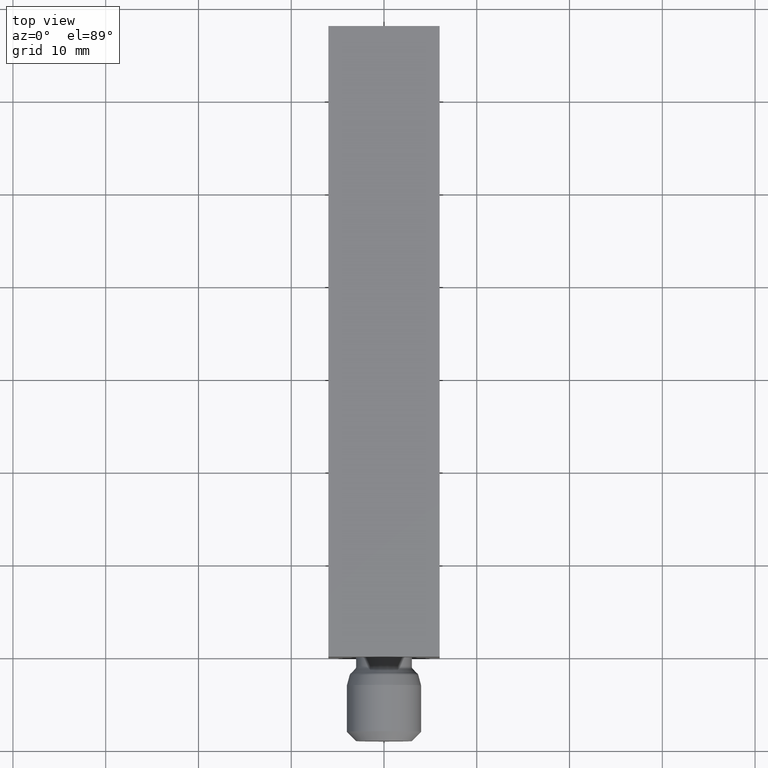
[diagram: clean part render]
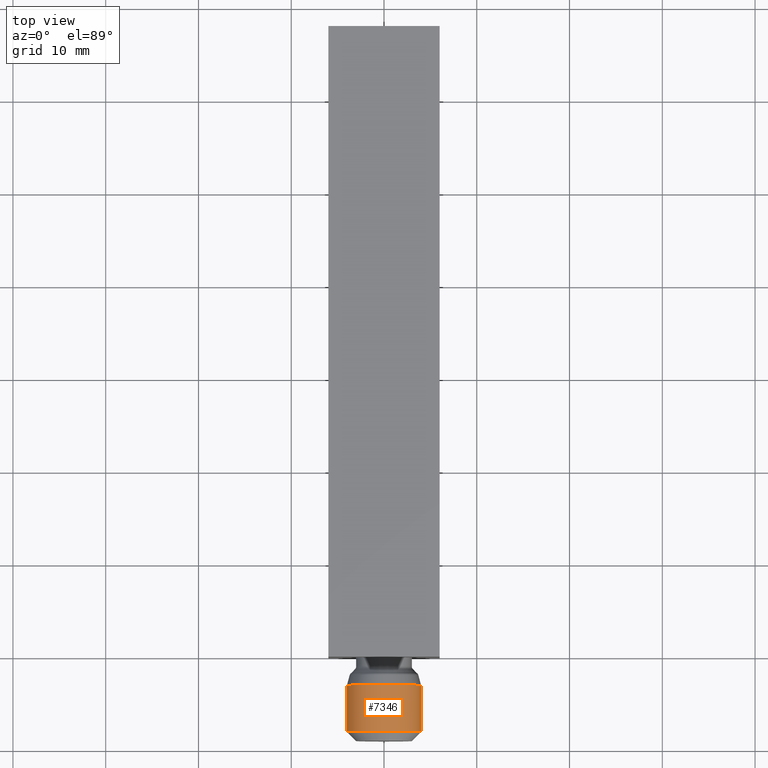
[diagram: same view with one face highlighted and labeled with its STEP entity id]
A machine part, top view. The second image highlights one B-rep face of the part: STEP entity #7346.
In plain terms, the highlighted cylindrical surface (partial cylindrical patch) has radius 4 mm, axis along (-0, 1, -0).
Its self-contained STEP definition (entity closure, byte-faithful):
#108 = VECTOR ( 'NONE', #7519, 1000.000000000000000 ) ;
#516 = DIRECTION ( 'NONE',  ( -1.000000000000000000, 0.0000000000000000000, 0.0000000000000000000 ) ) ;
#569 = CARTESIAN_POINT ( 'NONE',  ( -4.000000000000005300, -4.898587196589418700E-016, 0.0000000000000000000 ) ) ;
#667 = CARTESIAN_POINT ( 'NONE',  ( -4.000000000000000000, -3.000000000000000900, 0.0000000000000000000 ) ) ;
#1411 = EDGE_LOOP ( 'NONE', ( #3878, #3458, #2516, #7060 ) ) ;
#1893 = CARTESIAN_POINT ( 'NONE',  ( 0.0000000000000000000, 0.0000000000000000000, 0.0000000000000000000 ) ) ;
#2059 = AXIS2_PLACEMENT_3D ( 'NONE', #7641, #10630, #516 ) ;
#2201 = VECTOR ( 'NONE', #7592, 1000.000000000000000 ) ;
#2300 = CARTESIAN_POINT ( 'NONE',  ( 3.673940397442059900E-016, -3.000000000000000400, 0.0000000000000000000 ) ) ;
#2497 = CIRCLE ( 'NONE', #2059, 4.000000000000009800 ) ;
#2516 = ORIENTED_EDGE ( 'NONE', *, *, #8921, .F. ) ;
#2639 = AXIS2_PLACEMENT_3D ( 'NONE', #1893, #11014, #2875 ) ;
#2642 = CARTESIAN_POINT ( 'NONE',  ( 4.000000000000005300, 4.898587196589418700E-016, 4.898587196589419700E-016 ) ) ;
#2875 = DIRECTION ( 'NONE',  ( -1.000000000000000000, -1.224646799147353000E-016, 0.0000000000000000000 ) ) ;
#3297 = CARTESIAN_POINT ( 'NONE',  ( 4.000000000000011500, -7.999999999999992900, 4.898587196589424700E-016 ) ) ;
#3373 = DIRECTION ( 'NONE',  ( -1.224646799147353000E-016, 1.000000000000000000, -0.0000000000000000000 ) ) ;
#3458 = ORIENTED_EDGE ( 'NONE', *, *, #11010, .T. ) ;
#3821 = CYLINDRICAL_SURFACE ( 'NONE', #2639, 4.000000000000005300 ) ;
#3878 = ORIENTED_EDGE ( 'NONE', *, *, #11274, .T. ) ;
#4756 = LINE ( 'NONE', #2642, #2201 ) ;
#5756 = AXIS2_PLACEMENT_3D ( 'NONE', #2300, #3373, #10427 ) ;
#6680 = VERTEX_POINT ( 'NONE', #11338 ) ;
#7060 = ORIENTED_EDGE ( 'NONE', *, *, #12799, .F. ) ;
#7346 = ADVANCED_FACE ( 'NONE', ( #9182 ), #3821, .T. ) ;
#7519 = DIRECTION ( 'NONE',  ( -1.224646799147353000E-016, 1.000000000000000000, -0.0000000000000000000 ) ) ;
#7592 = DIRECTION ( 'NONE',  ( -1.224646799147353000E-016, 1.000000000000000000, -0.0000000000000000000 ) ) ;
#7595 = CARTESIAN_POINT ( 'NONE',  ( 4.000000000000000000, -3.000000000000000000, 4.898587196589416800E-016 ) ) ;
#7641 = CARTESIAN_POINT ( 'NONE',  ( 9.797174393178815800E-016, -7.999999999999992900, 0.0000000000000000000 ) ) ;
#8921 = EDGE_CURVE ( 'NONE', #12009, #11319, #8998, .T. ) ;
#8998 = CIRCLE ( 'NONE', #5756, 4.000000000000000000 ) ;
#9182 = FACE_OUTER_BOUND ( 'NONE', #1411, .T. ) ;
#9671 = VERTEX_POINT ( 'NONE', #3297 ) ;
#10427 = DIRECTION ( 'NONE',  ( -1.000000000000000000, -1.084202172485504400E-016, 0.0000000000000000000 ) ) ;
#10630 = DIRECTION ( 'NONE',  ( -1.224646799147353000E-016, 1.000000000000000000, -0.0000000000000000000 ) ) ;
#11010 = EDGE_CURVE ( 'NONE', #9671, #11319, #4756, .T. ) ;
#11014 = DIRECTION ( 'NONE',  ( -1.224646799147353000E-016, 1.000000000000000000, -0.0000000000000000000 ) ) ;
#11274 = EDGE_CURVE ( 'NONE', #6680, #9671, #2497, .T. ) ;
#11319 = VERTEX_POINT ( 'NONE', #7595 ) ;
#11338 = CARTESIAN_POINT ( 'NONE',  ( -4.000000000000008000, -7.999999999999992900, 0.0000000000000000000 ) ) ;
#12009 = VERTEX_POINT ( 'NONE', #667 ) ;
#12570 = LINE ( 'NONE', #569, #108 ) ;
#12799 = EDGE_CURVE ( 'NONE', #6680, #12009, #12570, .T. ) ;